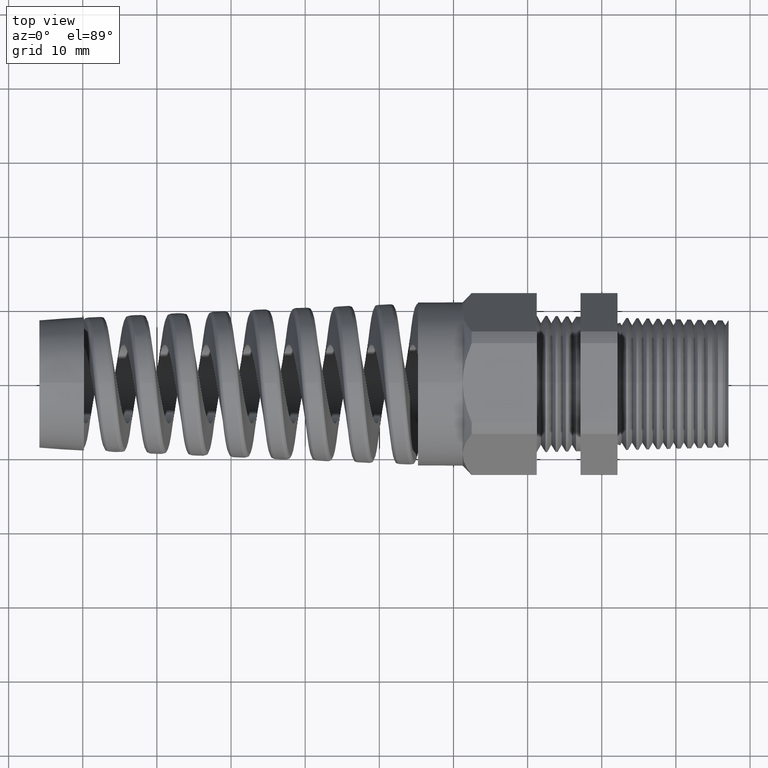
[diagram: clean part render]
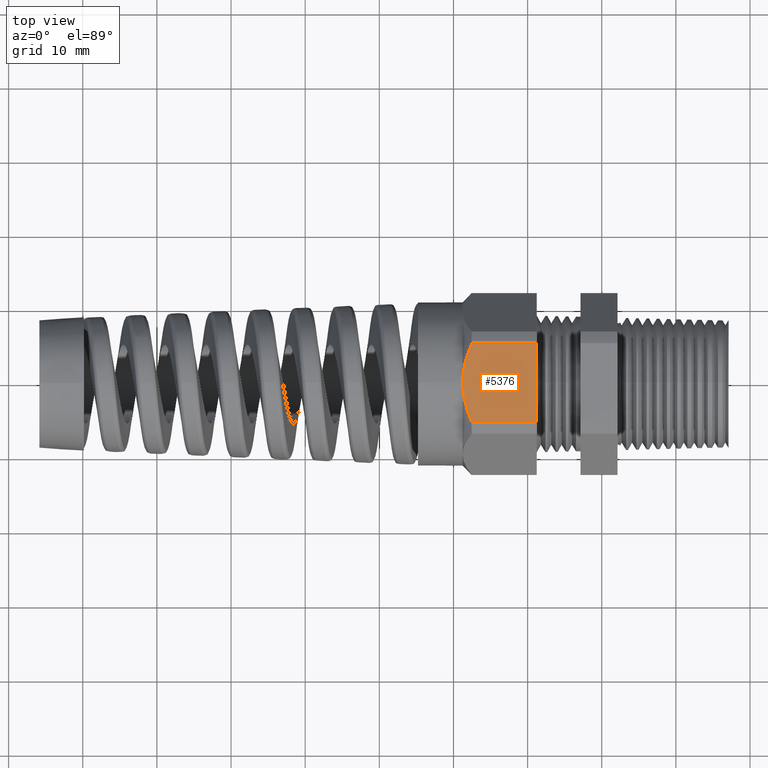
[diagram: same view with one face highlighted and labeled with its STEP entity id]
A machine part, top view. The second image highlights one B-rep face of the part: STEP entity #5376.
In plain terms, the highlighted planar face has unit normal (0, 0, 1).
Its self-contained STEP definition (entity closure, byte-faithful):
#5211 = VERTEX_POINT ( 'NONE', #14215 ) ;
#5376 = ADVANCED_FACE ( 'NONE', ( #14566 ), #14565, .T. ) ;
#5377 = EDGE_LOOP ( 'NONE', ( #5432, #5435, #5437, #5439, #5440 ) ) ;
#5378 = VERTEX_POINT ( 'NONE', #14560 ) ;
#5432 = ORIENTED_EDGE ( 'NONE', *, *, #5433, .T. ) ;
#5433 = EDGE_CURVE ( 'NONE', #5378, #5434, #14686, .T. ) ;
#5434 = VERTEX_POINT ( 'NONE', #14682 ) ;
#5435 = ORIENTED_EDGE ( 'NONE', *, *, #5436, .T. ) ;
#5436 = EDGE_CURVE ( 'NONE', #5434, #5211, #14681, .T. ) ;
#5437 = ORIENTED_EDGE ( 'NONE', *, *, #5438, .T. ) ;
#5438 = EDGE_CURVE ( 'NONE', #5211, #5452, #14680, .T. ) ;
#5439 = ORIENTED_EDGE ( 'NONE', *, *, #5450, .F. ) ;
#5440 = ORIENTED_EDGE ( 'NONE', *, *, #5441, .F. ) ;
#5441 = EDGE_CURVE ( 'NONE', #5378, #5451, #14723, .T. ) ;
#5450 = EDGE_CURVE ( 'NONE', #5451, #5452, #14702, .T. ) ;
#5451 = VERTEX_POINT ( 'NONE', #14761 ) ;
#5452 = VERTEX_POINT ( 'NONE', #14760 ) ;
#14215 = CARTESIAN_POINT ( 'NONE',  ( -1.132519685039370200, 0.0000000000000000000, 0.4350000000000000000 ) ) ;
#14560 = CARTESIAN_POINT ( 'NONE',  ( -0.7388188976377951800, 0.2095688967857588800, 0.4350000000000000000 ) ) ;
#14561 = DIRECTION ( 'NONE',  ( 1.000000000000000000, 0.0000000000000000000, 0.0000000000000000000 ) ) ;
#14562 = DIRECTION ( 'NONE',  ( 0.0000000000000000000, 0.0000000000000000000, 1.000000000000000000 ) ) ;
#14563 = CARTESIAN_POINT ( 'NONE',  ( 0.2800000000000000300, -0.2095688967857588800, 0.4350000000000000000 ) ) ;
#14564 = AXIS2_PLACEMENT_3D ( 'NONE', #14563, #14562, #14561 ) ;
#14565 = PLANE ( 'NONE',  #14564 ) ;
#14566 = FACE_OUTER_BOUND ( 'NONE', #5377, .T. ) ;
#14672 = CARTESIAN_POINT ( 'NONE',  ( -1.131365919895285000, 0.03631701440643151500, 0.4349999999999999400 ) ) ;
#14673 = CARTESIAN_POINT ( 'NONE',  ( -1.126953985276837800, 0.07202051439197791600, 0.4350000000000000000 ) ) ;
#14674 = CARTESIAN_POINT ( 'NONE',  ( -1.123697821147358100, 0.08966953692545987000, 0.4349999999999999400 ) ) ;
#14675 = CARTESIAN_POINT ( 'NONE',  ( -1.115341325356370000, 0.1246115883433621100, 0.4350000000000000000 ) ) ;
#14676 = CARTESIAN_POINT ( 'NONE',  ( -1.110242086561557000, 0.1419048281921316300, 0.4349999999999999400 ) ) ;
#14677 = CARTESIAN_POINT ( 'NONE',  ( -1.098469736810483000, 0.1761874914065258700, 0.4350000000000000500 ) ) ;
#14678 = CARTESIAN_POINT ( 'NONE',  ( -1.091830309629261400, 0.1930707062801148300, 0.4349999999999999400 ) ) ;
#14679 = CARTESIAN_POINT ( 'NONE',  ( -1.084669685039370200, 0.2095688967857588500, 0.4349999999999999400 ) ) ;
#14680 = B_SPLINE_CURVE_WITH_KNOTS ( 'NONE', 3,
 ( #14729, #14728, #14727, #14726, #14725, #14724 ),
 .UNSPECIFIED., .F., .F.,
 ( 4, 2, 4 ),
 ( 0.01387641045209833800, 0.01660081637957175000, 0.01932522230704516300 ),
 .UNSPECIFIED. ) ;
#14681 = B_SPLINE_CURVE_WITH_KNOTS ( 'NONE', 3,
 ( #14679, #14678, #14677, #14676, #14675, #14674, #14673, #14672, #14731, #14730 ),
 .UNSPECIFIED., .F., .F.,
 ( 4, 2, 2, 2, 4 ),
 ( 0.008435252053080174700, 0.009795541652834714700, 0.01115583125258925700, 0.01251612085234379800, 0.01387641045209833800 ),
 .UNSPECIFIED. ) ;
#14682 = CARTESIAN_POINT ( 'NONE',  ( -1.084669685039370200, 0.2095688967857588500, 0.4349999999999999400 ) ) ;
#14683 = DIRECTION ( 'NONE',  ( -1.000000000000000000, 0.0000000000000000000, 0.0000000000000000000 ) ) ;
#14684 = VECTOR ( 'NONE', #14683, 39.37007874015748100 ) ;
#14685 = CARTESIAN_POINT ( 'NONE',  ( 0.2800000000000000300, 0.2095688967857588800, 0.4350000000000000000 ) ) ;
#14686 = LINE ( 'NONE', #14685, #14684 ) ;
#14701 = CARTESIAN_POINT ( 'NONE',  ( 0.2800000000000000300, -0.2095688967857588800, 0.4349999999999999400 ) ) ;
#14702 = LINE ( 'NONE', #14701, #14763 ) ;
#14720 = DIRECTION ( 'NONE',  ( 0.0000000000000000000, -1.000000000000000000, 0.0000000000000000000 ) ) ;
#14721 = VECTOR ( 'NONE', #14720, 39.37007874015748100 ) ;
#14722 = CARTESIAN_POINT ( 'NONE',  ( -0.7388188976377951800, 0.3649999999999999400, 0.4350000000000000000 ) ) ;
#14723 = LINE ( 'NONE', #14722, #14721 ) ;
#14724 = CARTESIAN_POINT ( 'NONE',  ( -1.084669685039370200, -0.2095688967857588800, 0.4350000000000000000 ) ) ;
#14725 = CARTESIAN_POINT ( 'NONE',  ( -1.098992865436302100, -0.1765680662201013500, 0.4350000000000000000 ) ) ;
#14726 = CARTESIAN_POINT ( 'NONE',  ( -1.111188185361895000, -0.1420117476062550100, 0.4349999999999999400 ) ) ;
#14727 = CARTESIAN_POINT ( 'NONE',  ( -1.127904030336482000, -0.07204736442187346900, 0.4350000000000000500 ) ) ;
#14728 = CARTESIAN_POINT ( 'NONE',  ( -1.132519685039369700, -0.03642096200278194900, 0.4349999999999999400 ) ) ;
#14729 = CARTESIAN_POINT ( 'NONE',  ( -1.132519685039370200, 0.0000000000000000000, 0.4350000000000000000 ) ) ;
#14730 = CARTESIAN_POINT ( 'NONE',  ( -1.132519685039370200, 0.0000000000000000000, 0.4350000000000000000 ) ) ;
#14731 = CARTESIAN_POINT ( 'NONE',  ( -1.132519685039370200, 0.01818490237663866100, 0.4350000000000000000 ) ) ;
#14760 = CARTESIAN_POINT ( 'NONE',  ( -1.084669685039370200, -0.2095688967857588800, 0.4350000000000000000 ) ) ;
#14761 = CARTESIAN_POINT ( 'NONE',  ( -0.7388188976377951800, -0.2095688967857588800, 0.4349999999999999400 ) ) ;
#14762 = DIRECTION ( 'NONE',  ( -1.000000000000000000, 0.0000000000000000000, 0.0000000000000000000 ) ) ;
#14763 = VECTOR ( 'NONE', #14762, 39.37007874015748100 ) ;